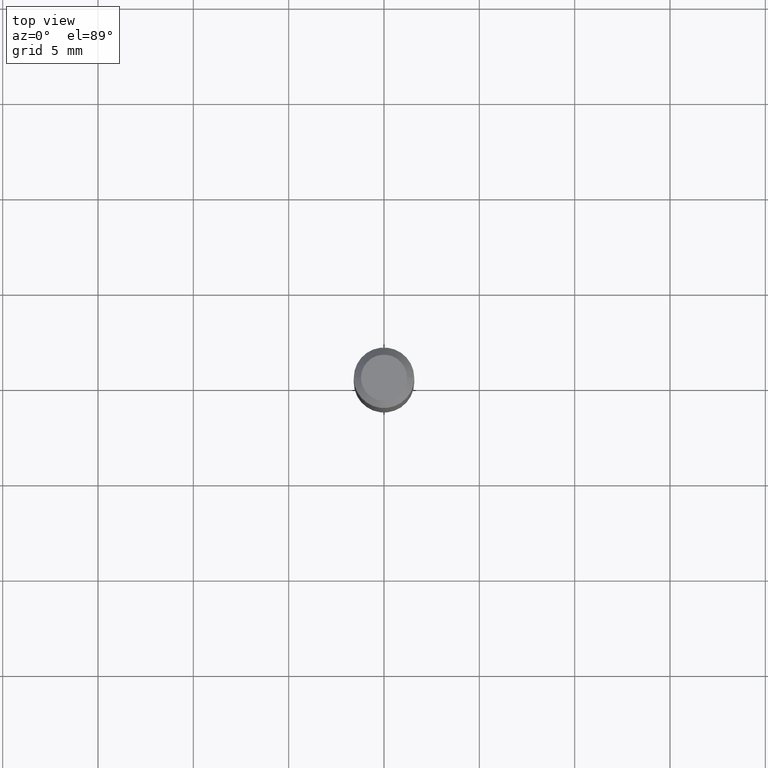
[diagram: clean part render]
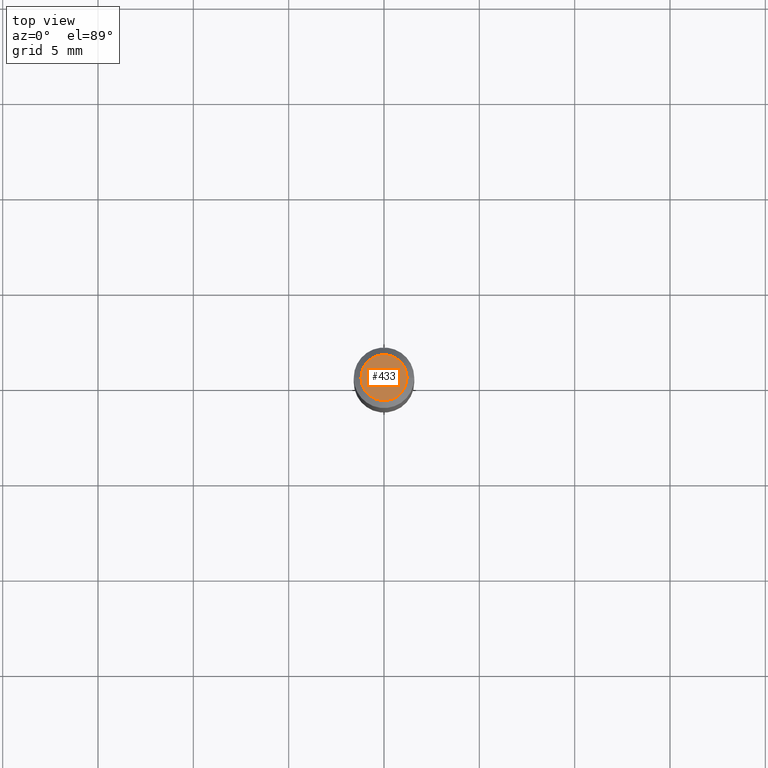
[diagram: same view with one face highlighted and labeled with its STEP entity id]
A machine part, top view. The second image highlights one B-rep face of the part: STEP entity #433.
In plain terms, the highlighted planar face has unit normal (0, -0, -1).
Its self-contained STEP definition (entity closure, byte-faithful):
#4 = EDGE_CURVE ( 'NONE', #459, #34, #224, .T. ) ;
#29 = FACE_OUTER_BOUND ( 'NONE', #131, .T. ) ;
#34 = VERTEX_POINT ( 'NONE', #327 ) ;
#62 = DIRECTION ( 'NONE',  ( 1.000000000000000000, -6.982962677686267499E-15, 4.852736867747366768E-29 ) ) ;
#68 = CIRCLE ( 'NONE', #103, 0.04749999999999999362 ) ;
#69 = DIRECTION ( 'NONE',  ( -2.445468806185136597E-29, 3.491481338843145583E-15, 1.000000000000000000 ) ) ;
#102 = DIRECTION ( 'NONE',  ( 1.000000000000000000, -6.982962677686267499E-15, 4.852736867747366768E-29 ) ) ;
#103 = AXIS2_PLACEMENT_3D ( 'NONE', #141, #320, #102 ) ;
#118 = ORIENTED_EDGE ( 'NONE', *, *, #4, .T. ) ;
#131 = EDGE_LOOP ( 'NONE', ( #147, #118 ) ) ;
#141 = CARTESIAN_POINT ( 'NONE',  ( -6.039856226162563845E-45, 8.623313963198305035E-31, 2.469815280770058928E-16 ) ) ;
#147 = ORIENTED_EDGE ( 'NONE', *, *, #341, .T. ) ;
#216 = DIRECTION ( 'NONE',  ( -1.000000000000000000, 6.982962677686265922E-15, -4.876176775795935793E-29 ) ) ;
#224 = CIRCLE ( 'NONE', #374, 0.04749999999999999362 ) ;
#320 = DIRECTION ( 'NONE',  ( -2.445468806185136597E-29, 3.491481338843145583E-15, 1.000000000000000000 ) ) ;
#327 = CARTESIAN_POINT ( 'NONE',  ( -0.04749999999999999362, 3.578768372314215436E-16, 2.469815280770034769E-16 ) ) ;
#335 = AXIS2_PLACEMENT_3D ( 'NONE', #388, #361, #216 ) ;
#341 = EDGE_CURVE ( 'NONE', #34, #459, #68, .T. ) ;
#358 = CARTESIAN_POINT ( 'NONE',  ( 0.04749999999999999362, -4.035134999187574186E-16, 2.469815280770084566E-16 ) ) ;
#361 = DIRECTION ( 'NONE',  ( 2.438088387897960049E-29, -3.491481338843145188E-15, -1.000000000000000000 ) ) ;
#374 = AXIS2_PLACEMENT_3D ( 'NONE', #398, #69, #62 ) ;
#388 = CARTESIAN_POINT ( 'NONE',  ( 3.316907271900976096E-16, 0.04749999999999999362, -4.235459955654645622E-17 ) ) ;
#398 = CARTESIAN_POINT ( 'NONE',  ( -6.039856226162563845E-45, 8.623313963198305035E-31, 2.469815280770058928E-16 ) ) ;
#426 = PLANE ( 'NONE',  #335 ) ;
#433 = ADVANCED_FACE ( 'NONE', ( #29 ), #426, .F. ) ;
#459 = VERTEX_POINT ( 'NONE', #358 ) ;